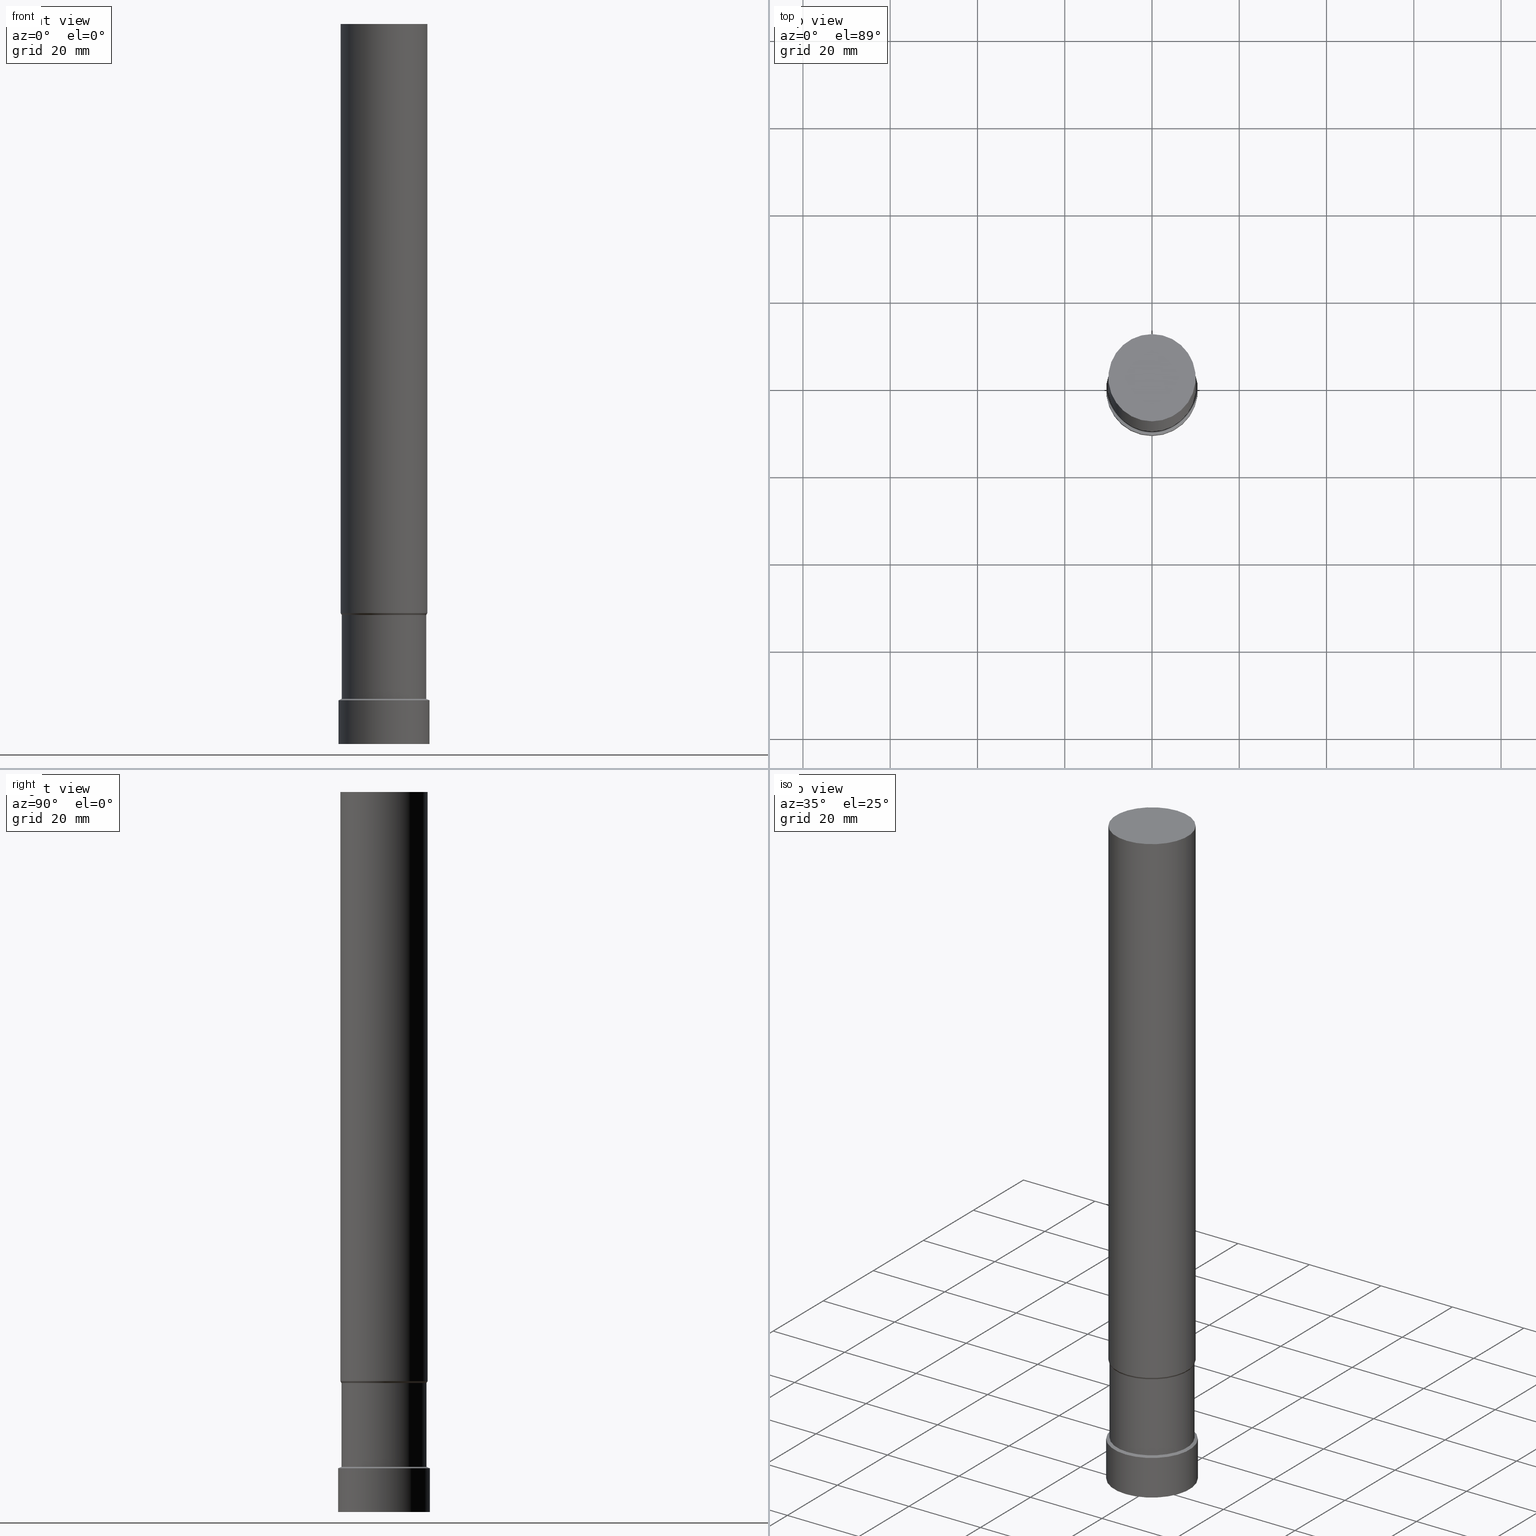
[diagram: canonical four-view strip — front | top / right | iso, engineering-drawing reading convention]
A machine part, canonical four-view strip (front | top / right | iso — engineering-drawing reading convention). The complete STEP part file that produces these views, byte-faithful:
ISO-10303-21;
HEADER;
FILE_DESCRIPTION((''),'1');
FILE_NAME('//Big_tech03/bigt/Translate/BIG-HP/\X2\30C030A630F330ED30FC30C930C730FC30BF\X0\/201309/\X2\5207524A5DE55177\X0\/\X2\FF74FF9DFF84FF9EFF90FF9952A05DE5\X0\/02_\X2\FF8CFF99FF76FF6FFF84FF90FF99\X0\FCR/03_\X2\FF7DFF84FF9AFF70FF84FF7CFF6CFF9DFF78578B\X0\/01_\X2\FF75FF70FF8AFF9EFF70FF7BFF72FF7DFF9E578B\X0\/ST20-FCR21082-165.stp','2013-09-25T23:55:11',(''),(''),'Spatial Interop R18','Kubotek KeyCreator V8.5.1 (14335)',' ');
FILE_SCHEMA(('CONFIG_CONTROL_DESIGN'));
ENDSEC;
DATA;
#1=DESIGN_CONTEXT('',#27,'design');
#2=APPLICATION_PROTOCOL_DEFINITION('INTERNATIONAL STANDARD','config_control_design',1994,#27);
#3=PRODUCT_CATEGORY_RELATIONSHIP('NONE','NONE',#28,#29);
#4=DATE_AND_TIME(#30,#31);
#5=DATE_TIME_ROLE('creation_date');
#6=DATE_TIME_ROLE('classification_date');
#7=PERSON_AND_ORGANIZATION_ROLE('creator');
#8=PERSON_AND_ORGANIZATION_ROLE('design_supplier');
#9=PERSON_AND_ORGANIZATION_ROLE('classification_officer');
#10=PERSON_AND_ORGANIZATION_ROLE('design_owner');
#11=APPROVAL_PERSON_ORGANIZATION(#32,#33,#34);
#12=APPROVAL_DATE_TIME(#4,#33);
#13=CC_DESIGN_APPROVAL(#33,(#35,#36,#37));
#14=CC_DESIGN_DATE_AND_TIME_ASSIGNMENT(#4,#5,(#37));
#15=CC_DESIGN_DATE_AND_TIME_ASSIGNMENT(#4,#6,(#35));
#16=CC_DESIGN_PERSON_AND_ORGANIZATION_ASSIGNMENT(#32,#10,(#38));
#17=CC_DESIGN_PERSON_AND_ORGANIZATION_ASSIGNMENT(#32,#7,(#37));
#18=CC_DESIGN_PERSON_AND_ORGANIZATION_ASSIGNMENT(#32,#7,(#36));
#19=CC_DESIGN_PERSON_AND_ORGANIZATION_ASSIGNMENT(#32,#8,(#36));
#20=CC_DESIGN_SECURITY_CLASSIFICATION(#35,(#36));
#21=CC_DESIGN_PERSON_AND_ORGANIZATION_ASSIGNMENT(#32,#9,(#35));
#22=SHAPE_DEFINITION_REPRESENTATION(#39,#40);
#23= (GEOMETRIC_REPRESENTATION_CONTEXT(3)GLOBAL_UNCERTAINTY_ASSIGNED_CONTEXT((#43))GLOBAL_UNIT_ASSIGNED_CONTEXT((#45,#46,#47))REPRESENTATION_CONTEXT('NONE','WORKSPACE'));
#27=APPLICATION_CONTEXT('CONFIGURATION CONTROLLED 3D DESIGNS OF MECHANICAL PARTS AND ASSEMBLIES');
#28=PRODUCT_CATEGORY('part','NONE');
#29=PRODUCT_RELATED_PRODUCT_CATEGORY('detail',' ',(#38));
#30=CALENDAR_DATE(2013,26,8);
#31=LOCAL_TIME(8,55,11.0,#49);
#32=PERSON_AND_ORGANIZATION(#50,#51);
#33=APPROVAL(#52,'SOLID MODEL');
#34=APPROVAL_ROLE('APPROVED');
#35=SECURITY_CLASSIFICATION('','',#53);
#36=PRODUCT_DEFINITION_FORMATION_WITH_SPECIFIED_SOURCE(' ','NONE',#38,.NOT_KNOWN.);
#37=PRODUCT_DEFINITION('NONE','NONE',#36,#1);
#38=PRODUCT('1','1','PART-1-DESC',(#54));
#39=PRODUCT_DEFINITION_SHAPE('NONE','NONE',#37);
#40=ADVANCED_BREP_SHAPE_REPRESENTATION('1',(#55,#56),#23);
#43=UNCERTAINTY_MEASURE_WITH_UNIT(LENGTH_MEASURE(1.0E-006),#45,'','');
#45= (CONVERSION_BASED_UNIT('MILLIMETRE',#59)LENGTH_UNIT()NAMED_UNIT(#62));
#46= (NAMED_UNIT(#64)PLANE_ANGLE_UNIT()SI_UNIT($,.RADIAN.));
#47= (NAMED_UNIT(#64)SOLID_ANGLE_UNIT()SI_UNIT($,.STERADIAN.));
#49=COORDINATED_UNIVERSAL_TIME_OFFSET(9,0,.AHEAD.);
#50=PERSON('','UNSPECIFIED',$,$,$,$);
#51=ORGANIZATION('UNSPECIFIED','UNSPECIFIED','UNSPECIFIED');
#52=APPROVAL_STATUS('approved');
#53=SECURITY_CLASSIFICATION_LEVEL('unclassified');
#54=MECHANICAL_CONTEXT('',#27,'mechanical');
#55=MANIFOLD_SOLID_BREP('1',#70);
#56=AXIS2_PLACEMENT_3D('',#71,#72,#73);
#59=LENGTH_MEASURE_WITH_UNIT(LENGTH_MEASURE(1.0),#74);
#62=DIMENSIONAL_EXPONENTS(1.0,0.0,0.0,0.0,0.0,0.0,0.0);
#64=DIMENSIONAL_EXPONENTS(0.0,0.0,0.0,0.0,0.0,0.0,0.0);
#70=CLOSED_SHELL('',(#75,#76,#77,#78,#79,#80,#81));
#71=CARTESIAN_POINT('',(0.0,0.0,0.0));
#72=DIRECTION('',(0.0,0.0,1.0));
#73=DIRECTION('',(1.0,0.0,0.0));
#74= (NAMED_UNIT(#62)LENGTH_UNIT()SI_UNIT(.MILLI.,.METRE.));
#75=ADVANCED_FACE('',(#83),#84,.T.);
#76=ADVANCED_FACE('',(#85,#86),#87,.T.);
#77=ADVANCED_FACE('',(#88,#89),#90,.T.);
#78=ADVANCED_FACE('',(#91,#92),#93,.T.);
#79=ADVANCED_FACE('',(#94,#95),#96,.T.);
#80=ADVANCED_FACE('',(#97,#98),#99,.T.);
#81=ADVANCED_FACE('',(#100),#101,.T.);
#83=FACE_OUTER_BOUND('',#102,.T.);
#84=PLANE('',#103);
#85=FACE_BOUND('',#104,.T.);
#86=FACE_BOUND('',#105,.T.);
#87=CYLINDRICAL_SURFACE('',#106,10.4999999999996);
#88=FACE_BOUND('',#107,.T.);
#89=FACE_BOUND('',#108,.T.);
#90=CONICAL_SURFACE('',#109,10.1249999999998,1.16238928182828);
#91=FACE_BOUND('',#110,.T.);
#92=FACE_BOUND('',#111,.T.);
#93=CYLINDRICAL_SURFACE('',#112,9.74999999999998);
#94=FACE_BOUND('',#113,.T.);
#95=FACE_BOUND('',#114,.T.);
#96=CONICAL_SURFACE('',#115,9.87499999999987,0.523598775600941);
#97=FACE_BOUND('',#116,.T.);
#98=FACE_BOUND('',#117,.T.);
#99=CYLINDRICAL_SURFACE('',#118,10.0);
#100=FACE_OUTER_BOUND('',#119,.T.);
#101=PLANE('',#120);
#102=EDGE_LOOP('',(#121));
#103=AXIS2_PLACEMENT_3D('',#122,#123,#124);
#104=EDGE_LOOP('',(#125));
#105=EDGE_LOOP('',(#126));
#106=AXIS2_PLACEMENT_3D('',#127,#128,#129);
#107=EDGE_LOOP('',(#130));
#108=EDGE_LOOP('',(#131));
#109=AXIS2_PLACEMENT_3D('',#132,#133,#134);
#110=EDGE_LOOP('',(#135));
#111=EDGE_LOOP('',(#136));
#112=AXIS2_PLACEMENT_3D('',#137,#138,#139);
#113=EDGE_LOOP('',(#140));
#114=EDGE_LOOP('',(#141));
#115=AXIS2_PLACEMENT_3D('',#142,#143,#144);
#116=EDGE_LOOP('',(#145));
#117=EDGE_LOOP('',(#146));
#118=AXIS2_PLACEMENT_3D('',#147,#148,#149);
#119=EDGE_LOOP('',(#150));
#120=AXIS2_PLACEMENT_3D('',#151,#152,#153);
#121=ORIENTED_EDGE('',*,*,#154,.F.);
#122=CARTESIAN_POINT('',(-4.34714614893682E-030,5.24999999999993,7.05804089817454E-014));
#123=DIRECTION('',(6.12323399573677E-017,-3.48561009224082E-014,-1.0));
#124=DIRECTION('',(-2.12949346853844E-030,-1.0,3.48561009224082E-014));
#125=ORIENTED_EDGE('',*,*,#155,.F.);
#126=ORIENTED_EDGE('',*,*,#154,.T.);
#127=CARTESIAN_POINT('',(-3.06641877599025E-016,2.54229392902351E-013,5.00784189878291));
#128=DIRECTION('',(6.12323399573677E-017,-4.94467802770667E-014,-1.0));
#129=DIRECTION('',(3.02291490699184E-030,1.0,-4.94467802770667E-014));
#130=ORIENTED_EDGE('',*,*,#156,.F.);
#131=ORIENTED_EDGE('',*,*,#155,.T.);
#132=CARTESIAN_POINT('',(-6.23220355068558E-016,5.09875125643957E-013,10.177960788408));
#133=DIRECTION('',(6.12323399573677E-017,-4.94467802770667E-014,-1.0));
#134=DIRECTION('',(3.02291490699184E-030,1.0,-4.94467802770667E-014));
#135=ORIENTED_EDGE('',*,*,#157,.F.);
#136=ORIENTED_EDGE('',*,*,#156,.T.);
#137=CARTESIAN_POINT('',(-1.22180638634604E-015,9.93249629804768E-013,19.9536125386798));
#138=DIRECTION('',(6.12323399573677E-017,-4.94467802770667E-014,-1.0));
#139=DIRECTION('',(3.02291490699184E-030,1.0,-4.94467802770667E-014));
#140=ORIENTED_EDGE('',*,*,#158,.F.);
#141=ORIENTED_EDGE('',*,*,#157,.T.);
#142=CARTESIAN_POINT('',(-1.82371300823699E-015,1.47930560121914E-012,29.7834936490542));
#143=DIRECTION('',(-6.12323399573677E-017,4.94467802770667E-014,1.0));
#144=DIRECTION('',(3.02291490699184E-030,1.0,-4.94467802770667E-014));
#145=ORIENTED_EDGE('',*,*,#159,.F.);
#146=ORIENTED_EDGE('',*,*,#158,.T.);
#147=CARTESIAN_POINT('',(-5.97015314584332E-015,4.82766881188492E-012,97.4999999999996));
#148=DIRECTION('',(6.12323399573677E-017,-4.94467802770667E-014,-1.0));
#149=DIRECTION('',(3.02291490699184E-030,1.0,-4.94467802770667E-014));
#150=ORIENTED_EDGE('',*,*,#159,.T.);
#151=CARTESIAN_POINT('',(-1.01033360929656E-014,5.00000000000816,165.0));
#152=DIRECTION('',(-6.12323399573677E-017,5.38787832378529E-014,1.0));
#153=DIRECTION('',(3.29429681897876E-030,1.0,-5.38787832378529E-014));
#154=EDGE_CURVE('',#160,#160,#161,.T.);
#155=EDGE_CURVE('',#162,#162,#163,.T.);
#156=EDGE_CURVE('',#164,#164,#165,.T.);
#157=EDGE_CURVE('',#166,#166,#167,.T.);
#158=EDGE_CURVE('',#168,#168,#169,.T.);
#159=EDGE_CURVE('',#170,#170,#171,.T.);
#160=VERTEX_POINT('',#172);
#161=CIRCLE('',#173,10.4999999999999);
#162=VERTEX_POINT('',#174);
#163=CIRCLE('',#175,10.4999999999994);
#164=VERTEX_POINT('',#176);
#165=CIRCLE('',#177,9.75000000000027);
#166=VERTEX_POINT('',#178);
#167=CIRCLE('',#179,9.74999999999968);
#168=VERTEX_POINT('',#180);
#169=CIRCLE('',#181,10.0000000000001);
#170=VERTEX_POINT('',#182);
#171=CIRCLE('',#183,10.0);
#172=CARTESIAN_POINT('',(6.83269456088986E-030,10.4999999999999,-1.12414120860895E-013));
#173=AXIS2_PLACEMENT_3D('',#184,#185,#186);
#174=CARTESIAN_POINT('',(-6.13283755197994E-016,10.4999999999999,10.0156837975649));
#175=AXIS2_PLACEMENT_3D('',#187,#188,#189);
#176=CARTESIAN_POINT('',(-6.33156954939058E-016,9.75000000000079,10.3402377792501));
#177=AXIS2_PLACEMENT_3D('',#190,#191,#192);
#178=CARTESIAN_POINT('',(-1.81045581775296E-015,9.75000000000115,29.5669872981086));
#179=AXIS2_PLACEMENT_3D('',#193,#194,#195);
#180=CARTESIAN_POINT('',(-1.83697019872096E-015,10.0000000000015,29.9999999999988));
#181=AXIS2_PLACEMENT_3D('',#196,#197,#198);
#182=CARTESIAN_POINT('',(-1.01033360929656E-014,10.0000000000082,164.999999999999));
#183=AXIS2_PLACEMENT_3D('',#199,#200,#201);
#184=CARTESIAN_POINT('',(-2.43645888361683E-029,6.60773487096351E-015,3.97903932025656E-013));
#185=DIRECTION('',(-6.12323399573677E-017,4.94467802770666E-014,1.0));
#186=DIRECTION('',(3.02291490699184E-030,1.0,-4.94467802770666E-014));
#187=CARTESIAN_POINT('',(-6.13283755198026E-016,5.01851050933739E-013,10.0156837975654));
#188=DIRECTION('',(-6.12323399573677E-017,4.94467802770667E-014,1.0));
#189=DIRECTION('',(3.02291490699184E-030,1.0,-4.94467802770667E-014));
#190=CARTESIAN_POINT('',(-6.33156954939087E-016,5.17899200354171E-013,10.3402377792506));
#191=DIRECTION('',(-6.12323399573677E-017,4.94467802770667E-014,1.0));
#192=DIRECTION('',(3.02291490699184E-030,1.0,-4.94467802770667E-014));
#193=CARTESIAN_POINT('',(-1.81045581775299E-015,1.46860005925536E-012,29.5669872981091));
#194=DIRECTION('',(-6.12323399573677E-017,4.94467802770666E-014,1.0));
#195=DIRECTION('',(3.02291490699184E-030,1.0,-4.94467802770666E-014));
#196=CARTESIAN_POINT('',(-1.83697019872099E-015,1.49001114318291E-012,29.9999999999993));
#197=DIRECTION('',(-6.12323399573677E-017,4.94467802770667E-014,1.0));
#198=DIRECTION('',(3.02291490699184E-030,1.0,-4.94467802770667E-014));
#199=CARTESIAN_POINT('',(-1.01033360929657E-014,8.16532648058694E-012,165.0));
#200=DIRECTION('',(-6.12323399573677E-017,4.94467802770667E-014,1.0));
#201=DIRECTION('',(3.02291490699184E-030,1.0,-4.94467802770667E-014));
ENDSEC;
END-ISO-10303-21;
